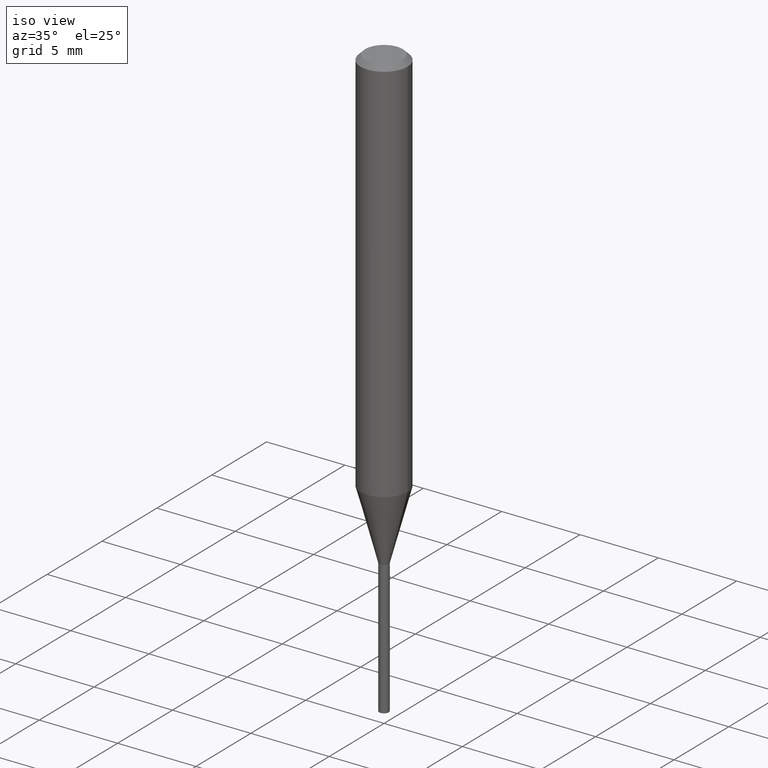
[diagram: clean part render]
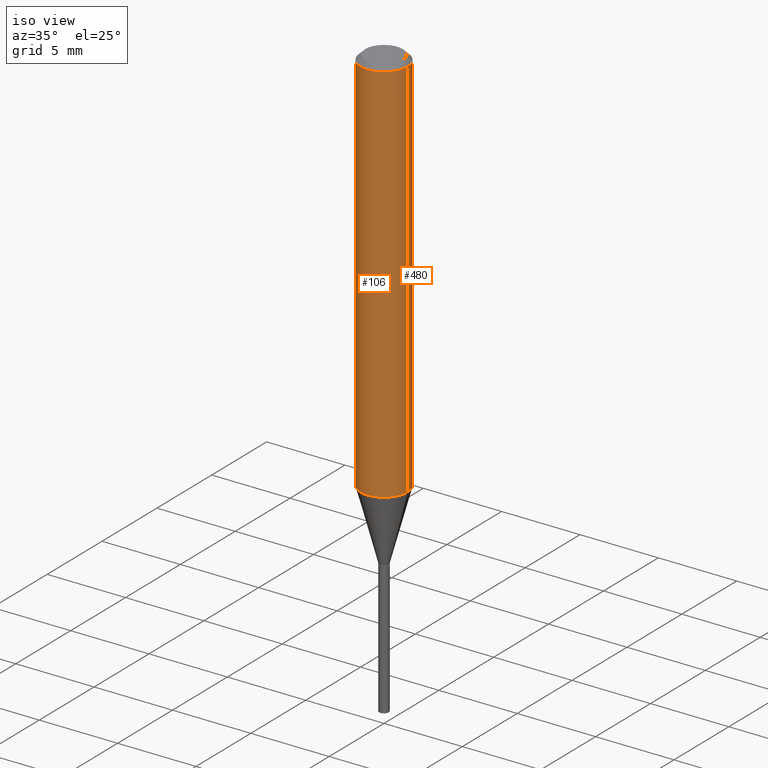
[diagram: same view with one multi-face feature highlighted, each face labeled with its STEP entity id]
A machine part, iso view. The highlighted faces form ONE feature: a constant-radius fillet chain: 2 tangent blend faces with common blend radius 1.4999 mm. The faces share edges in the B-rep.
Their STEP definitions:
[1] entity #480 (Cylinder):
#22 = CIRCLE ( 'NONE', #31, 0.05904999999999999832 ) ;
#27 = DIRECTION ( 'NONE',  ( -2.445468806185136597E-29, 3.491481338843145583E-15, 1.000000000000000000 ) ) ;
#29 = VERTEX_POINT ( 'NONE', #340 ) ;
#30 = DIRECTION ( 'NONE',  ( -2.445468806185136597E-29, 3.491481338843145583E-15, 1.000000000000000000 ) ) ;
#31 = AXIS2_PLACEMENT_3D ( 'NONE', #440, #30, #184 ) ;
#33 = CARTESIAN_POINT ( 'NONE',  ( 0.05905000000000011628, -3.825827684443467023E-15, -0.9776605993423704843 ) ) ;
#51 = LINE ( 'NONE', #316, #464 ) ;
#62 = CYLINDRICAL_SURFACE ( 'NONE', #158, 0.05905000000000006771 ) ;
#141 = DIRECTION ( 'NONE',  ( 1.000000000000000000, -6.982962677686266711E-15, 4.876176775795936353E-29 ) ) ;
#143 = VERTEX_POINT ( 'NONE', #228 ) ;
#158 = AXIS2_PLACEMENT_3D ( 'NONE', #367, #27, #141 ) ;
#162 = DIRECTION ( 'NONE',  ( -2.445468806185136877E-29, 3.491481338843145188E-15, 1.000000000000000000 ) ) ;
#184 = DIRECTION ( 'NONE',  ( 1.000000000000000000, -6.982962677686266711E-15, 0.000000000000000000 ) ) ;
#228 = CARTESIAN_POINT ( 'NONE',  ( 0.05904999999999999832, -4.535783407291118600E-16, -0.01181000000000006871 ) ) ;
#240 = DIRECTION ( 'NONE',  ( -2.445468806185136597E-29, 3.491481338843145583E-15, 1.000000000000000000 ) ) ;
#242 = CARTESIAN_POINT ( 'NONE',  ( 2.390838498728031811E-29, -3.413483738326091708E-15, -0.9776605993423704843 ) ) ;
#244 = CIRCLE ( 'NONE', #405, 0.05905000000000013016 ) ;
#269 = EDGE_CURVE ( 'NONE', #29, #327, #51, .T. ) ;
#282 = ORIENTED_EDGE ( 'NONE', *, *, #358, .F. ) ;
#283 = LINE ( 'NONE', #369, #362 ) ;
#291 = ORIENTED_EDGE ( 'NONE', *, *, #269, .T. ) ;
#295 = DIRECTION ( 'NONE',  ( -2.445468806185136877E-29, 3.491481338843145188E-15, 1.000000000000000000 ) ) ;
#302 = EDGE_CURVE ( 'NONE', #469, #29, #244, .T. ) ;
#316 = CARTESIAN_POINT ( 'NONE',  ( -0.05905000000000006771, 4.195754854663396409E-16, -2.904631170795525045E-30 ) ) ;
#319 = ORIENTED_EDGE ( 'NONE', *, *, #302, .T. ) ;
#327 = VERTEX_POINT ( 'NONE', #356 ) ;
#340 = CARTESIAN_POINT ( 'NONE',  ( -0.05905000000000011628, -2.993908252859751821E-15, -0.9776605993423704843 ) ) ;
#356 = CARTESIAN_POINT ( 'NONE',  ( -0.05904999999999999832, -1.307783581002574437E-15, -0.01181000000000006871 ) ) ;
#358 = EDGE_CURVE ( 'NONE', #143, #327, #22, .T. ) ;
#360 = ORIENTED_EDGE ( 'NONE', *, *, #458, .F. ) ;
#362 = VECTOR ( 'NONE', #295, 39.37007874015748143 ) ;
#367 = CARTESIAN_POINT ( 'NONE',  ( 0.000000000000000000, 0.000000000000000000, 0.000000000000000000 ) ) ;
#369 = CARTESIAN_POINT ( 'NONE',  ( 0.05905000000000006771, -4.123439461173745257E-16, 2.879382386107503723E-30 ) ) ;
#388 = DIRECTION ( 'NONE',  ( 1.000000000000000000, -6.982962677686265133E-15, 0.000000000000000000 ) ) ;
#392 = EDGE_LOOP ( 'NONE', ( #319, #291, #282, #360 ) ) ;
#398 = FACE_OUTER_BOUND ( 'NONE', #392, .T. ) ;
#405 = AXIS2_PLACEMENT_3D ( 'NONE', #242, #240, #388 ) ;
#440 = CARTESIAN_POINT ( 'NONE',  ( 2.888098660104663328E-31, -4.123439461173779030E-17, -0.01181000000000006871 ) ) ;
#458 = EDGE_CURVE ( 'NONE', #469, #143, #283, .T. ) ;
#464 = VECTOR ( 'NONE', #162, 39.37007874015748143 ) ;
#469 = VERTEX_POINT ( 'NONE', #33 ) ;
#480 = ADVANCED_FACE ( 'NONE', ( #398 ), #62, .T. ) ;
[2] entity #106 (Cylinder):
#13 = ORIENTED_EDGE ( 'NONE', *, *, #269, .F. ) ;
#29 = VERTEX_POINT ( 'NONE', #340 ) ;
#33 = CARTESIAN_POINT ( 'NONE',  ( 0.05905000000000011628, -3.825827684443467023E-15, -0.9776605993423704843 ) ) ;
#51 = LINE ( 'NONE', #316, #464 ) ;
#106 = ADVANCED_FACE ( 'NONE', ( #107 ), #148, .T. ) ;
#107 = FACE_OUTER_BOUND ( 'NONE', #120, .T. ) ;
#120 = EDGE_LOOP ( 'NONE', ( #13, #214, #412, #139 ) ) ;
#139 = ORIENTED_EDGE ( 'NONE', *, *, #169, .F. ) ;
#140 = AXIS2_PLACEMENT_3D ( 'NONE', #347, #352, #457 ) ;
#143 = VERTEX_POINT ( 'NONE', #228 ) ;
#148 = CYLINDRICAL_SURFACE ( 'NONE', #265, 0.05905000000000006771 ) ;
#162 = DIRECTION ( 'NONE',  ( -2.445468806185136877E-29, 3.491481338843145188E-15, 1.000000000000000000 ) ) ;
#169 = EDGE_CURVE ( 'NONE', #327, #143, #361, .T. ) ;
#211 = AXIS2_PLACEMENT_3D ( 'NONE', #407, #364, #229 ) ;
#214 = ORIENTED_EDGE ( 'NONE', *, *, #420, .T. ) ;
#228 = CARTESIAN_POINT ( 'NONE',  ( 0.05904999999999999832, -4.535783407291118600E-16, -0.01181000000000006871 ) ) ;
#229 = DIRECTION ( 'NONE',  ( 1.000000000000000000, -6.982962677686265133E-15, 0.000000000000000000 ) ) ;
#255 = DIRECTION ( 'NONE',  ( 1.000000000000000000, -6.982962677686266711E-15, 4.876176775795936353E-29 ) ) ;
#264 = DIRECTION ( 'NONE',  ( -2.445468806185136597E-29, 3.491481338843145583E-15, 1.000000000000000000 ) ) ;
#265 = AXIS2_PLACEMENT_3D ( 'NONE', #335, #264, #255 ) ;
#269 = EDGE_CURVE ( 'NONE', #29, #327, #51, .T. ) ;
#283 = LINE ( 'NONE', #369, #362 ) ;
#295 = DIRECTION ( 'NONE',  ( -2.445468806185136877E-29, 3.491481338843145188E-15, 1.000000000000000000 ) ) ;
#316 = CARTESIAN_POINT ( 'NONE',  ( -0.05905000000000006771, 4.195754854663396409E-16, -2.904631170795525045E-30 ) ) ;
#327 = VERTEX_POINT ( 'NONE', #356 ) ;
#335 = CARTESIAN_POINT ( 'NONE',  ( 0.000000000000000000, 0.000000000000000000, 0.000000000000000000 ) ) ;
#340 = CARTESIAN_POINT ( 'NONE',  ( -0.05905000000000011628, -2.993908252859751821E-15, -0.9776605993423704843 ) ) ;
#347 = CARTESIAN_POINT ( 'NONE',  ( 2.888098660104663328E-31, -4.123439461173779030E-17, -0.01181000000000006871 ) ) ;
#352 = DIRECTION ( 'NONE',  ( -2.445468806185136597E-29, 3.491481338843145583E-15, 1.000000000000000000 ) ) ;
#356 = CARTESIAN_POINT ( 'NONE',  ( -0.05904999999999999832, -1.307783581002574437E-15, -0.01181000000000006871 ) ) ;
#361 = CIRCLE ( 'NONE', #140, 0.05904999999999999832 ) ;
#362 = VECTOR ( 'NONE', #295, 39.37007874015748143 ) ;
#364 = DIRECTION ( 'NONE',  ( -2.445468806185136597E-29, 3.491481338843145583E-15, 1.000000000000000000 ) ) ;
#369 = CARTESIAN_POINT ( 'NONE',  ( 0.05905000000000006771, -4.123439461173745257E-16, 2.879382386107503723E-30 ) ) ;
#372 = CIRCLE ( 'NONE', #211, 0.05905000000000013016 ) ;
#407 = CARTESIAN_POINT ( 'NONE',  ( 2.390838498728031811E-29, -3.413483738326091708E-15, -0.9776605993423704843 ) ) ;
#412 = ORIENTED_EDGE ( 'NONE', *, *, #458, .T. ) ;
#420 = EDGE_CURVE ( 'NONE', #29, #469, #372, .T. ) ;
#457 = DIRECTION ( 'NONE',  ( 1.000000000000000000, -6.982962677686266711E-15, 0.000000000000000000 ) ) ;
#458 = EDGE_CURVE ( 'NONE', #469, #143, #283, .T. ) ;
#464 = VECTOR ( 'NONE', #162, 39.37007874015748143 ) ;
#469 = VERTEX_POINT ( 'NONE', #33 ) ;